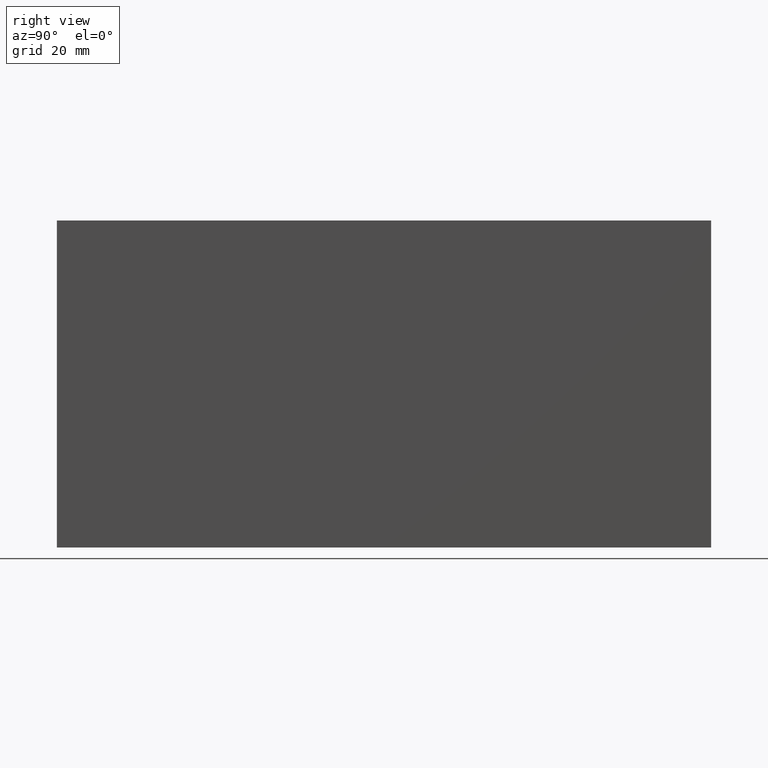
[diagram: clean part render]
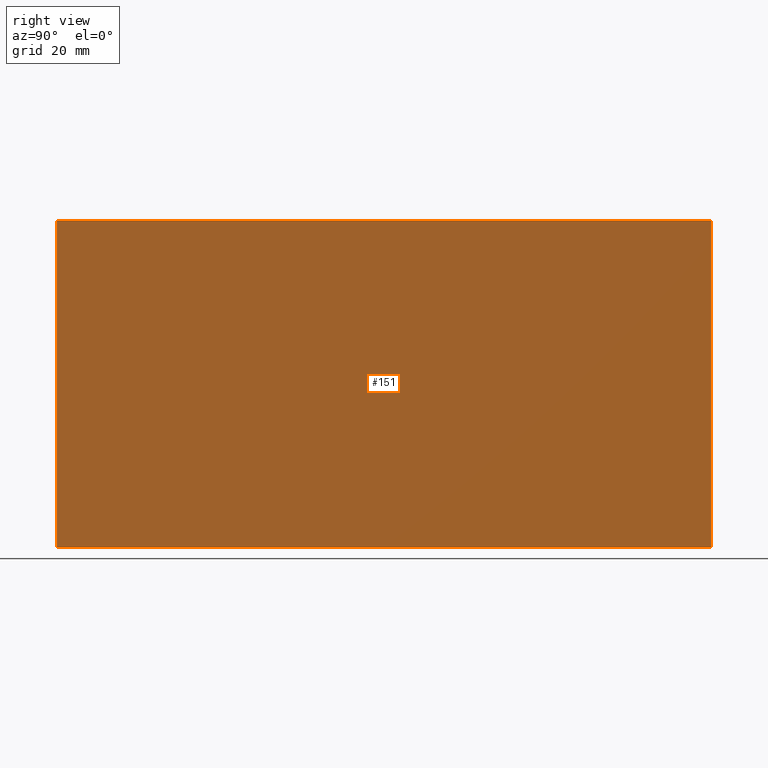
[diagram: same view with one face highlighted and labeled with its STEP entity id]
A machine part, right view. The second image highlights one B-rep face of the part: STEP entity #151.
In plain terms, the highlighted face is a freeform B-spline surface patch.
Its self-contained STEP definition (entity closure, byte-faithful):
#58=CARTESIAN_POINT('',(1.600000000000030,0.0,7.887024E-013));
#59=VERTEX_POINT('',#58);
#65=CARTESIAN_POINT('',(1.600000000000030,0.0,100.0));
#66=VERTEX_POINT('',#65);
#67=CARTESIAN_POINT('',(1.600000000000030,0.0,100.0));
#68=CARTESIAN_POINT('',(1.600000000000030,0.0,7.887024E-013));
#69=QUASI_UNIFORM_CURVE('',1,(#67,#68),.UNSPECIFIED.,.F.,.U.);
#70=EDGE_CURVE('',#66,#59,#69,.T.);
#94=CARTESIAN_POINT('',(1.600000000000030,200.0,100.0));
#95=VERTEX_POINT('',#94);
#101=CARTESIAN_POINT('',(1.600000000000030,200.0,7.887024E-013));
#102=VERTEX_POINT('',#101);
#103=CARTESIAN_POINT('',(1.600000000000030,200.0,100.0));
#104=CARTESIAN_POINT('',(1.600000000000030,200.0,7.887024E-013));
#105=QUASI_UNIFORM_CURVE('',1,(#103,#104),.UNSPECIFIED.,.F.,.U.);
#106=EDGE_CURVE('',#95,#102,#105,.T.);
#128=CARTESIAN_POINT('',(1.600000000000030,200.0,7.887024E-013));
#129=CARTESIAN_POINT('',(1.600000000000030,0.0,7.887024E-013));
#130=QUASI_UNIFORM_CURVE('',1,(#128,#129),.UNSPECIFIED.,.F.,.U.);
#131=EDGE_CURVE('',#102,#59,#130,.T.);
#136=CARTESIAN_POINT('',(1.600000000000030,-9.989999612361194,-4.994999806179771));
#137=CARTESIAN_POINT('',(1.600000000000030,-9.989999612361194,104.995002488389600));
#138=CARTESIAN_POINT('',(1.600000000000030,209.990004976779200,-4.994999806179771));
#139=CARTESIAN_POINT('',(1.600000000000030,209.990004976779200,104.995002488389600));
#140=B_SPLINE_SURFACE_WITH_KNOTS('',1,1,((#136,#138),(#137,#139)),.UNSPECIFIED.,.F.,.F.,.U.,(2,2),(2,2),(0.0,109.990002294569390),(0.0,219.980004589140410),.UNSPECIFIED.);
#141=ORIENTED_EDGE('',*,*,#70,.T.);
#142=ORIENTED_EDGE('',*,*,#131,.F.);
#143=ORIENTED_EDGE('',*,*,#106,.F.);
#144=CARTESIAN_POINT('',(1.600000000000030,200.0,100.0));
#145=CARTESIAN_POINT('',(1.600000000000030,0.0,100.0));
#146=QUASI_UNIFORM_CURVE('',1,(#144,#145),.UNSPECIFIED.,.F.,.U.);
#147=EDGE_CURVE('',#95,#66,#146,.T.);
#148=ORIENTED_EDGE('',*,*,#147,.T.);
#149=EDGE_LOOP('',(#141,#142,#143,#148));
#150=FACE_OUTER_BOUND('',#149,.T.);
#151=ADVANCED_FACE('',(#150),#140,.F.);